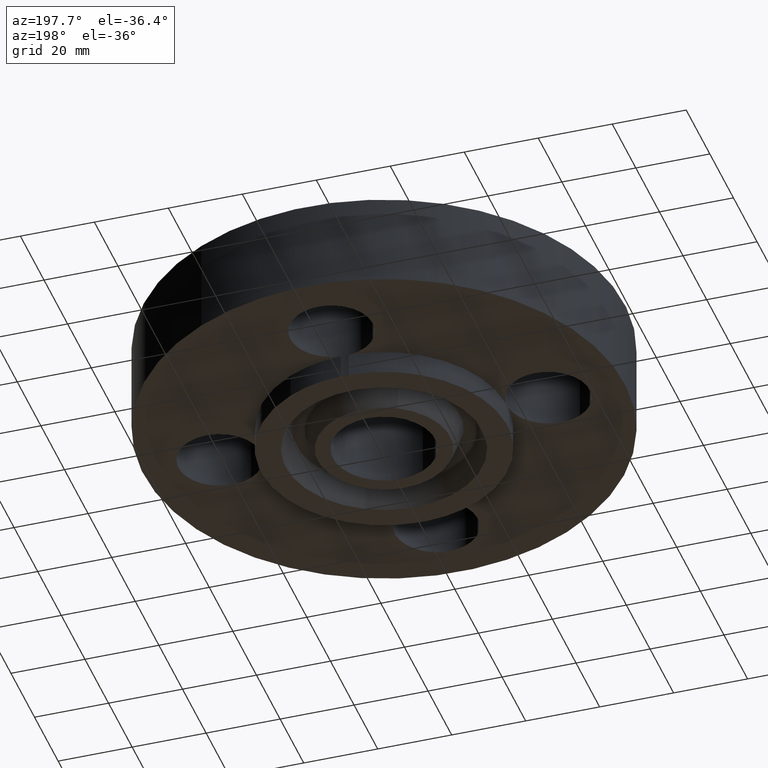
[diagram: clean part render]
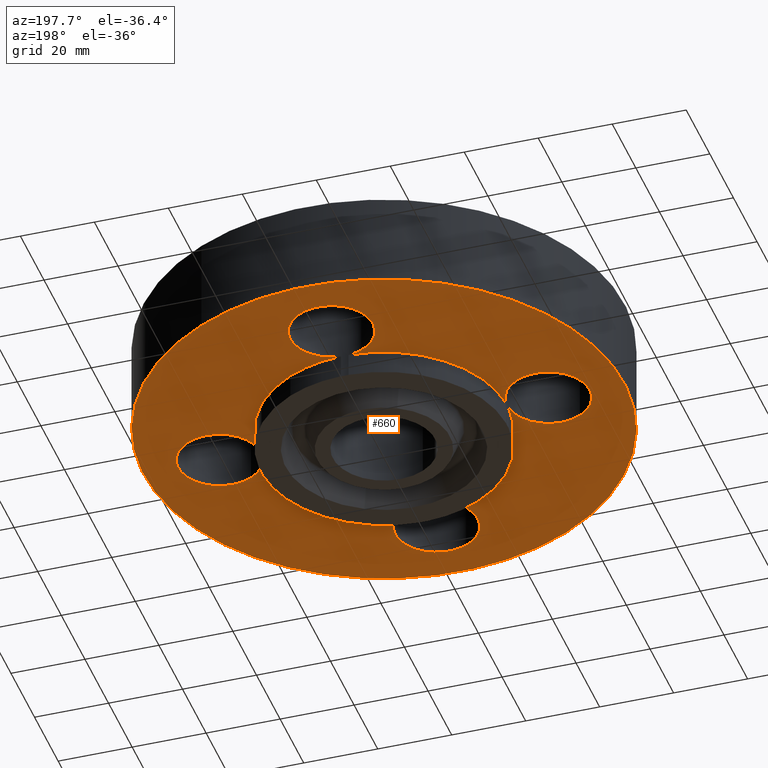
[diagram: same view with one face highlighted and labeled with its STEP entity id]
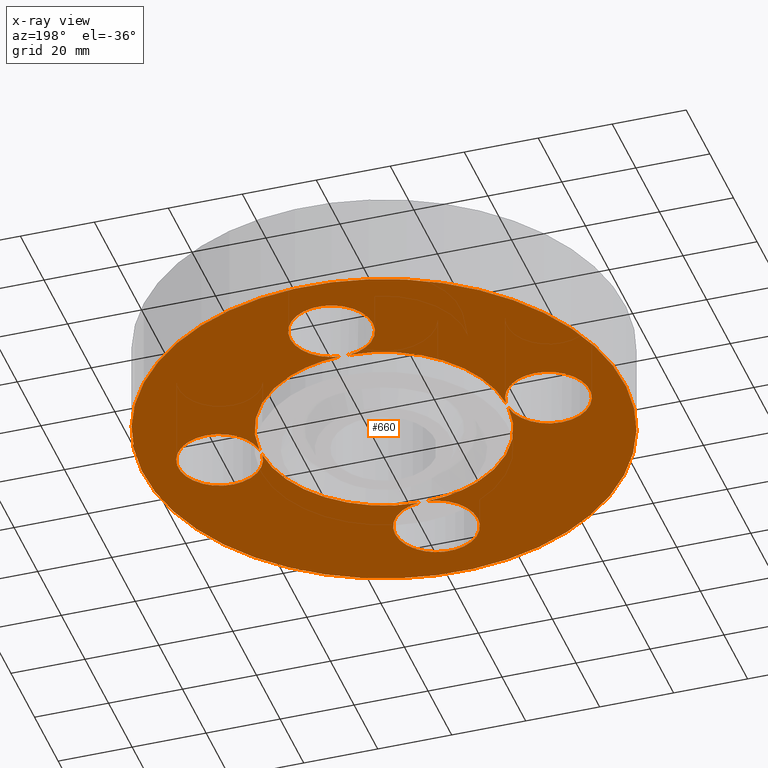
[diagram: x-ray of the same camera — body ghosted, the highlighted face saturated]
A machine part, auxiliary view. The second image highlights one B-rep face of the part: STEP entity #660.
The next image is the same camera in x-ray: the body ghosted, the highlighted face saturated — about 0% of this face is hidden behind the body in this view.
In plain terms, the highlighted planar face has unit normal (0, 0, -1).
Its self-contained STEP definition (entity closure, byte-faithful):
#51=AXIS2_PLACEMENT_3D('Circle Axis2P3D',#49,#50,$) ;
#77=AXIS2_PLACEMENT_3D('Circle Axis2P3D',#75,#76,$) ;
#105=AXIS2_PLACEMENT_3D('Circle Axis2P3D',#103,#104,$) ;
#131=AXIS2_PLACEMENT_3D('Circle Axis2P3D',#129,#130,$) ;
#162=AXIS2_PLACEMENT_3D('Circle Axis2P3D',#160,#161,$) ;
#197=AXIS2_PLACEMENT_3D('Circle Axis2P3D',#195,#196,$) ;
#444=AXIS2_PLACEMENT_3D('Circle Axis2P3D',#442,#443,$) ;
#463=AXIS2_PLACEMENT_3D('Circle Axis2P3D',#461,#462,$) ;
#505=AXIS2_PLACEMENT_3D('Circle Axis2P3D',#503,#504,$) ;
#524=AXIS2_PLACEMENT_3D('Circle Axis2P3D',#522,#523,$) ;
#557=AXIS2_PLACEMENT_3D('Circle Axis2P3D',#555,#556,$) ;
#577=AXIS2_PLACEMENT_3D('Plane Axis2P3D',#574,#575,#576) ;
#585=AXIS2_PLACEMENT_3D('Circle Axis2P3D',#583,#584,$) ;
#592=AXIS2_PLACEMENT_3D('Circle Axis2P3D',#590,#591,$) ;
#599=AXIS2_PLACEMENT_3D('Circle Axis2P3D',#597,#598,$) ;
#604=AXIS2_PLACEMENT_3D('Circle Axis2P3D',#602,#603,$) ;
#611=AXIS2_PLACEMENT_3D('Circle Axis2P3D',#609,#610,$) ;
#618=AXIS2_PLACEMENT_3D('Circle Axis2P3D',#616,#617,$) ;
#623=AXIS2_PLACEMENT_3D('Circle Axis2P3D',#621,#622,$) ;
#630=AXIS2_PLACEMENT_3D('Circle Axis2P3D',#628,#629,$) ;
#637=AXIS2_PLACEMENT_3D('Circle Axis2P3D',#635,#636,$) ;
#44=CARTESIAN_POINT('Vertex',(-0.386136327233,1.96094723699,0.)) ;
#49=CARTESIAN_POINT('Axis2P3D Location',(0.,1.75000000001,0.)) ;
#53=CARTESIAN_POINT('Vertex',(0.386136327233,1.53905276302,0.)) ;
#75=CARTESIAN_POINT('Axis2P3D Location',(0.,1.75000000001,0.)) ;
#79=CARTESIAN_POINT('Vertex',(0.0405576089,1.31187321429,6.99353086378E-017)) ;
#100=CARTESIAN_POINT('Vertex',(-0.0405576089,1.31187321429,6.99353086378E-017)) ;
#103=CARTESIAN_POINT('Axis2P3D Location',(0.,1.75000000001,0.)) ;
#129=CARTESIAN_POINT('Axis2P3D Location',(0.,0.,6.99353086378E-017)) ;
#133=CARTESIAN_POINT('Vertex',(0.629246019421,1.15182711249,0.)) ;
#160=CARTESIAN_POINT('Axis2P3D Location',(0.,0.,1.39870617276E-016)) ;
#164=CARTESIAN_POINT('Vertex',(-1.22732937883,-2.24661135845,2.09805925913E-016)) ;
#166=CARTESIAN_POINT('Vertex',(1.22732937883,2.24661135845,2.09805925913E-016)) ;
#195=CARTESIAN_POINT('Axis2P3D Location',(0.,0.,1.39870617276E-016)) ;
#439=CARTESIAN_POINT('Vertex',(-0.629246019421,-1.15182711249,0.)) ;
#442=CARTESIAN_POINT('Axis2P3D Location',(0.,0.,6.99353086378E-017)) ;
#446=CARTESIAN_POINT('Vertex',(-1.31187321429,-0.0405576089,1.39870617276E-016)) ;
#461=CARTESIAN_POINT('Axis2P3D Location',(0.,0.,6.99353086378E-017)) ;
#465=CARTESIAN_POINT('Vertex',(-1.31187321429,0.0405576089,0.)) ;
#500=CARTESIAN_POINT('Vertex',(1.31187321429,-0.0405576089,1.39870617276E-016)) ;
#503=CARTESIAN_POINT('Axis2P3D Location',(0.,0.,6.99353086378E-017)) ;
#507=CARTESIAN_POINT('Vertex',(0.0405576089,-1.31187321429,1.39870617276E-016)) ;
#522=CARTESIAN_POINT('Axis2P3D Location',(0.,0.,6.99353086378E-017)) ;
#526=CARTESIAN_POINT('Vertex',(-0.0405576089,-1.31187321429,0.)) ;
#555=CARTESIAN_POINT('Axis2P3D Location',(0.,0.,6.99353086378E-017)) ;
#559=CARTESIAN_POINT('Vertex',(1.31187321429,0.0405576089,1.39870617276E-016)) ;
#574=CARTESIAN_POINT('Axis2P3D Location',(0.,1.31250000001,0.)) ;
#583=CARTESIAN_POINT('Axis2P3D Location',(1.75000000001,0.,0.)) ;
#587=CARTESIAN_POINT('Vertex',(1.53905276302,-0.386136327233,0.)) ;
#590=CARTESIAN_POINT('Axis2P3D Location',(1.75000000001,-2.79741234551E-016,0.)) ;
#594=CARTESIAN_POINT('Vertex',(1.96094723699,0.386136327233,0.)) ;
#597=CARTESIAN_POINT('Axis2P3D Location',(1.75000000001,0.,0.)) ;
#602=CARTESIAN_POINT('Axis2P3D Location',(-1.75000000001,-2.79741234551E-016,0.)) ;
#606=CARTESIAN_POINT('Vertex',(-1.53905276302,0.386136327233,0.)) ;
#609=CARTESIAN_POINT('Axis2P3D Location',(-1.75000000001,-2.79741234551E-016,0.)) ;
#613=CARTESIAN_POINT('Vertex',(-1.96094723699,-0.386136327233,0.)) ;
#616=CARTESIAN_POINT('Axis2P3D Location',(-1.75000000001,-2.79741234551E-016,0.)) ;
#621=CARTESIAN_POINT('Axis2P3D Location',(2.44773580232E-016,-1.75000000001,0.)) ;
#625=CARTESIAN_POINT('Vertex',(-0.386136327233,-1.53905276302,0.)) ;
#628=CARTESIAN_POINT('Axis2P3D Location',(2.79741234551E-016,-1.75000000001,0.)) ;
#632=CARTESIAN_POINT('Vertex',(0.386136327233,-1.96094723699,0.)) ;
#635=CARTESIAN_POINT('Axis2P3D Location',(2.44773580232E-016,-1.75000000001,0.)) ;
#50=DIRECTION('Axis2P3D Direction',(0.,-0.,-0.0393700787402)) ;
#76=DIRECTION('Axis2P3D Direction',(0.,-0.,-0.0393700787402)) ;
#104=DIRECTION('Axis2P3D Direction',(0.,-0.,-0.0393700787402)) ;
#130=DIRECTION('Axis2P3D Direction',(0.,0.,-0.0393700787402)) ;
#161=DIRECTION('Axis2P3D Direction',(0.,0.,-0.0393700787402)) ;
#196=DIRECTION('Axis2P3D Direction',(0.,0.,-0.0393700787402)) ;
#443=DIRECTION('Axis2P3D Direction',(0.,0.,-0.0393700787402)) ;
#462=DIRECTION('Axis2P3D Direction',(0.,0.,-0.0393700787402)) ;
#504=DIRECTION('Axis2P3D Direction',(0.,0.,-0.0393700787402)) ;
#523=DIRECTION('Axis2P3D Direction',(0.,0.,-0.0393700787402)) ;
#556=DIRECTION('Axis2P3D Direction',(0.,0.,-0.0393700787402)) ;
#575=DIRECTION('Axis2P3D Direction',(0.,0.,-0.0393700787402)) ;
#576=DIRECTION('Axis2P3D XDirection',(0.0393700787402,0.,0.)) ;
#584=DIRECTION('Axis2P3D Direction',(0.,0.,-0.0393700787402)) ;
#591=DIRECTION('Axis2P3D Direction',(0.,0.,-0.0393700787402)) ;
#598=DIRECTION('Axis2P3D Direction',(0.,0.,-0.0393700787402)) ;
#603=DIRECTION('Axis2P3D Direction',(0.,0.,-0.0393700787402)) ;
#610=DIRECTION('Axis2P3D Direction',(0.,0.,-0.0393700787402)) ;
#617=DIRECTION('Axis2P3D Direction',(0.,0.,-0.0393700787402)) ;
#622=DIRECTION('Axis2P3D Direction',(0.,0.,-0.0393700787402)) ;
#629=DIRECTION('Axis2P3D Direction',(0.,0.,-0.0393700787402)) ;
#636=DIRECTION('Axis2P3D Direction',(0.,0.,-0.0393700787402)) ;
#580=ORIENTED_EDGE('',*,*,#168,.T.) ;
#581=ORIENTED_EDGE('',*,*,#199,.T.) ;
#641=ORIENTED_EDGE('',*,*,#509,.F.) ;
#642=ORIENTED_EDGE('',*,*,#589,.F.) ;
#643=ORIENTED_EDGE('',*,*,#596,.F.) ;
#644=ORIENTED_EDGE('',*,*,#601,.F.) ;
#645=ORIENTED_EDGE('',*,*,#561,.F.) ;
#646=ORIENTED_EDGE('',*,*,#135,.F.) ;
#647=ORIENTED_EDGE('',*,*,#81,.F.) ;
#648=ORIENTED_EDGE('',*,*,#55,.F.) ;
#649=ORIENTED_EDGE('',*,*,#107,.F.) ;
#650=ORIENTED_EDGE('',*,*,#467,.F.) ;
#651=ORIENTED_EDGE('',*,*,#608,.F.) ;
#652=ORIENTED_EDGE('',*,*,#615,.F.) ;
#653=ORIENTED_EDGE('',*,*,#620,.F.) ;
#654=ORIENTED_EDGE('',*,*,#448,.F.) ;
#655=ORIENTED_EDGE('',*,*,#528,.F.) ;
#656=ORIENTED_EDGE('',*,*,#627,.F.) ;
#657=ORIENTED_EDGE('',*,*,#634,.F.) ;
#658=ORIENTED_EDGE('',*,*,#639,.F.) ;
#659=FACE_BOUND('',#640,.T.) ;
#660=ADVANCED_FACE('PartBody',(#582,#659),#578,.T.) ;
#52=CIRCLE('generated circle',#51,0.440000000002) ;
#78=CIRCLE('generated circle',#77,0.440000000002) ;
#106=CIRCLE('generated circle',#105,0.440000000002) ;
#132=CIRCLE('generated circle',#131,1.31250000001) ;
#163=CIRCLE('generated circle',#162,2.56000000001) ;
#198=CIRCLE('generated circle',#197,2.56000000001) ;
#445=CIRCLE('generated circle',#444,1.31250000001) ;
#464=CIRCLE('generated circle',#463,1.31250000001) ;
#506=CIRCLE('generated circle',#505,1.31250000001) ;
#525=CIRCLE('generated circle',#524,1.31250000001) ;
#558=CIRCLE('generated circle',#557,1.31250000001) ;
#586=CIRCLE('generated circle',#585,0.440000000002) ;
#593=CIRCLE('generated circle',#592,0.440000000002) ;
#600=CIRCLE('generated circle',#599,0.440000000002) ;
#605=CIRCLE('generated circle',#604,0.440000000002) ;
#612=CIRCLE('generated circle',#611,0.440000000002) ;
#619=CIRCLE('generated circle',#618,0.440000000002) ;
#624=CIRCLE('generated circle',#623,0.440000000002) ;
#631=CIRCLE('generated circle',#630,0.440000000002) ;
#638=CIRCLE('generated circle',#637,0.440000000002) ;
#55=EDGE_CURVE('',#45,#54,#52,.T.) ;
#81=EDGE_CURVE('',#54,#80,#78,.T.) ;
#107=EDGE_CURVE('',#101,#45,#106,.T.) ;
#135=EDGE_CURVE('',#80,#134,#132,.T.) ;
#168=EDGE_CURVE('',#165,#167,#163,.T.) ;
#199=EDGE_CURVE('',#167,#165,#198,.T.) ;
#448=EDGE_CURVE('',#440,#447,#445,.T.) ;
#467=EDGE_CURVE('',#466,#101,#464,.T.) ;
#509=EDGE_CURVE('',#501,#508,#506,.T.) ;
#528=EDGE_CURVE('',#527,#440,#525,.T.) ;
#561=EDGE_CURVE('',#134,#560,#558,.T.) ;
#589=EDGE_CURVE('',#588,#501,#586,.T.) ;
#596=EDGE_CURVE('',#595,#588,#593,.T.) ;
#601=EDGE_CURVE('',#560,#595,#600,.T.) ;
#608=EDGE_CURVE('',#607,#466,#605,.T.) ;
#615=EDGE_CURVE('',#614,#607,#612,.T.) ;
#620=EDGE_CURVE('',#447,#614,#619,.T.) ;
#627=EDGE_CURVE('',#626,#527,#624,.T.) ;
#634=EDGE_CURVE('',#633,#626,#631,.T.) ;
#639=EDGE_CURVE('',#508,#633,#638,.T.) ;
#579=EDGE_LOOP('',(#580,#581)) ;
#640=EDGE_LOOP('',(#641,#642,#643,#644,#645,#646,#647,#648,#649,#650,#651,#652,#653,#654,#655,#656,#657,#658)) ;
#582=FACE_OUTER_BOUND('',#579,.T.) ;
#578=PLANE('',#577) ;
#45=VERTEX_POINT('',#44) ;
#54=VERTEX_POINT('',#53) ;
#80=VERTEX_POINT('',#79) ;
#101=VERTEX_POINT('',#100) ;
#134=VERTEX_POINT('',#133) ;
#165=VERTEX_POINT('',#164) ;
#167=VERTEX_POINT('',#166) ;
#440=VERTEX_POINT('',#439) ;
#447=VERTEX_POINT('',#446) ;
#466=VERTEX_POINT('',#465) ;
#501=VERTEX_POINT('',#500) ;
#508=VERTEX_POINT('',#507) ;
#527=VERTEX_POINT('',#526) ;
#560=VERTEX_POINT('',#559) ;
#588=VERTEX_POINT('',#587) ;
#595=VERTEX_POINT('',#594) ;
#607=VERTEX_POINT('',#606) ;
#614=VERTEX_POINT('',#613) ;
#626=VERTEX_POINT('',#625) ;
#633=VERTEX_POINT('',#632) ;